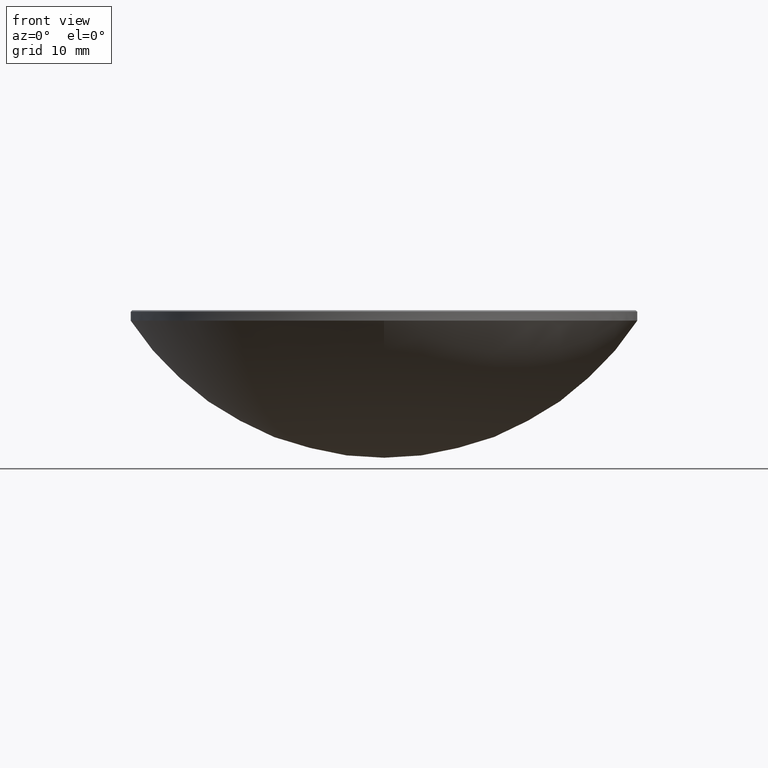
[diagram: clean part render]
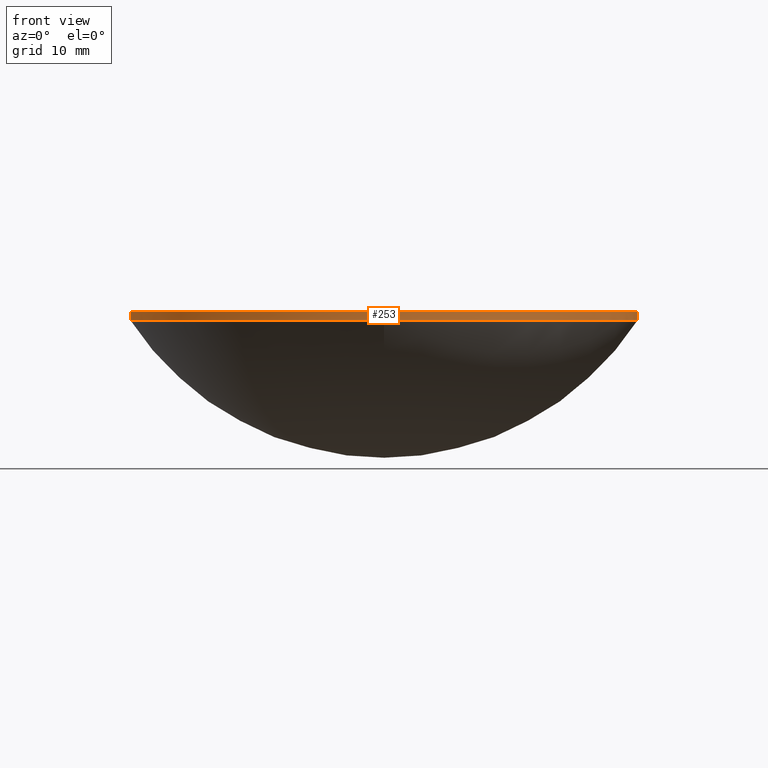
[diagram: same view with one face highlighted and labeled with its STEP entity id]
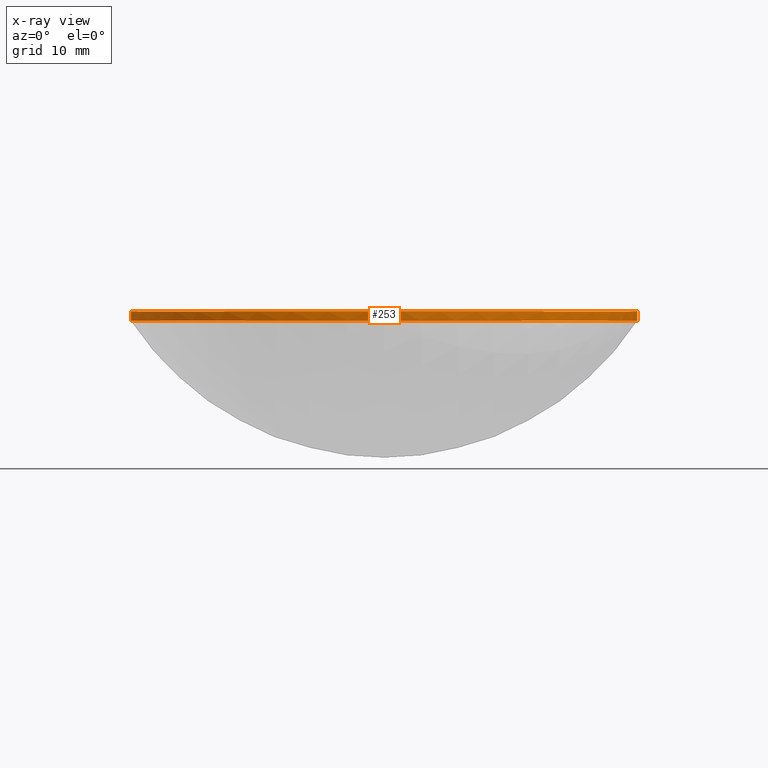
[diagram: x-ray of the same camera — body ghosted, the highlighted face saturated]
A machine part, front view. The second image highlights one B-rep face of the part: STEP entity #253.
The next image is the same camera in x-ray: the body ghosted, the highlighted face saturated — about 0% of this face is hidden behind the body in this view.
In plain terms, the highlighted cylindrical surface (partial cylindrical patch) has radius 25.4 mm, axis along (-0, -0, -1).
Its self-contained STEP definition (entity closure, byte-faithful):
#8 = LINE ( 'NONE', #47, #49 ) ;
#9 = DIRECTION ( 'NONE',  ( 1.000000000000000000, 0.000000000000000000, 0.000000000000000000 ) ) ;
#11 = CIRCLE ( 'NONE', #48, 25.39999999999999858 ) ;
#26 = EDGE_CURVE ( 'NONE', #261, #169, #94, .T. ) ;
#41 = DIRECTION ( 'NONE',  ( 1.000000000000000000, 0.000000000000000000, 0.000000000000000000 ) ) ;
#44 = EDGE_CURVE ( 'NONE', #113, #97, #11, .T. ) ;
#47 = CARTESIAN_POINT ( 'NONE',  ( -25.39999999999999858, 0.000000000000000000, 20.00000000000000000 ) ) ;
#48 = AXIS2_PLACEMENT_3D ( 'NONE', #104, #259, #82 ) ;
#49 = VECTOR ( 'NONE', #71, 1000.000000000000000 ) ;
#50 = CARTESIAN_POINT ( 'NONE',  ( -3.110602869834276076E-15, -25.39999999999999503, 16.00000000000000000 ) ) ;
#51 = FACE_OUTER_BOUND ( 'NONE', #81, .T. ) ;
#55 = EDGE_CURVE ( 'NONE', #113, #210, #140, .T. ) ;
#59 = ORIENTED_EDGE ( 'NONE', *, *, #199, .T. ) ;
#62 = AXIS2_PLACEMENT_3D ( 'NONE', #237, #116, #41 ) ;
#66 = CARTESIAN_POINT ( 'NONE',  ( -25.39999999999999858, 0.000000000000000000, 16.90000000000001279 ) ) ;
#71 = DIRECTION ( 'NONE',  ( -0.000000000000000000, -0.000000000000000000, -1.000000000000000000 ) ) ;
#76 = ORIENTED_EDGE ( 'NONE', *, *, #55, .F. ) ;
#79 = VECTOR ( 'NONE', #103, 1000.000000000000000 ) ;
#81 = EDGE_LOOP ( 'NONE', ( #76, #86, #59, #156, #159 ) ) ;
#82 = DIRECTION ( 'NONE',  ( 1.000000000000000000, 0.000000000000000000, 0.000000000000000000 ) ) ;
#86 = ORIENTED_EDGE ( 'NONE', *, *, #44, .T. ) ;
#94 = CIRCLE ( 'NONE', #62, 25.39999999999999503 ) ;
#97 = VERTEX_POINT ( 'NONE', #66 ) ;
#103 = DIRECTION ( 'NONE',  ( -0.000000000000000000, -0.000000000000000000, -1.000000000000000000 ) ) ;
#104 = CARTESIAN_POINT ( 'NONE',  ( 0.000000000000000000, 0.000000000000000000, 16.90000000000001279 ) ) ;
#113 = VERTEX_POINT ( 'NONE', #203 ) ;
#116 = DIRECTION ( 'NONE',  ( -0.000000000000000000, -0.000000000000000000, 1.000000000000000000 ) ) ;
#119 = CARTESIAN_POINT ( 'NONE',  ( 25.39999999999999858, 3.110602869834276865E-15, 20.00000000000000000 ) ) ;
#124 = CARTESIAN_POINT ( 'NONE',  ( 0.000000000000000000, 0.000000000000000000, 20.00000000000000000 ) ) ;
#132 = EDGE_CURVE ( 'NONE', #169, #210, #238, .T. ) ;
#135 = AXIS2_PLACEMENT_3D ( 'NONE', #124, #202, #226 ) ;
#140 = LINE ( 'NONE', #119, #79 ) ;
#145 = CARTESIAN_POINT ( 'NONE',  ( 0.000000000000000000, 0.000000000000000000, 16.00000000000000000 ) ) ;
#156 = ORIENTED_EDGE ( 'NONE', *, *, #26, .T. ) ;
#159 = ORIENTED_EDGE ( 'NONE', *, *, #132, .T. ) ;
#169 = VERTEX_POINT ( 'NONE', #50 ) ;
#170 = CYLINDRICAL_SURFACE ( 'NONE', #135, 25.39999999999999858 ) ;
#199 = EDGE_CURVE ( 'NONE', #97, #261, #8, .T. ) ;
#201 = DIRECTION ( 'NONE',  ( -0.000000000000000000, -0.000000000000000000, 1.000000000000000000 ) ) ;
#202 = DIRECTION ( 'NONE',  ( -0.000000000000000000, -0.000000000000000000, -1.000000000000000000 ) ) ;
#203 = CARTESIAN_POINT ( 'NONE',  ( 25.39999999999999858, 3.110602869834276865E-15, 16.90000000000001279 ) ) ;
#210 = VERTEX_POINT ( 'NONE', #230 ) ;
#226 = DIRECTION ( 'NONE',  ( -1.000000000000000000, 0.000000000000000000, 0.000000000000000000 ) ) ;
#230 = CARTESIAN_POINT ( 'NONE',  ( 25.39999999999999503, 3.110602869834276471E-15, 16.00000000000000000 ) ) ;
#237 = CARTESIAN_POINT ( 'NONE',  ( 0.000000000000000000, 0.000000000000000000, 16.00000000000000000 ) ) ;
#238 = CIRCLE ( 'NONE', #271, 25.39999999999999503 ) ;
#243 = CARTESIAN_POINT ( 'NONE',  ( -25.39999999999999503, 0.000000000000000000, 16.00000000000000000 ) ) ;
#253 = ADVANCED_FACE ( 'NONE', ( #51 ), #170, .T. ) ;
#259 = DIRECTION ( 'NONE',  ( 0.000000000000000000, 0.000000000000000000, -1.000000000000000000 ) ) ;
#261 = VERTEX_POINT ( 'NONE', #243 ) ;
#271 = AXIS2_PLACEMENT_3D ( 'NONE', #145, #201, #9 ) ;